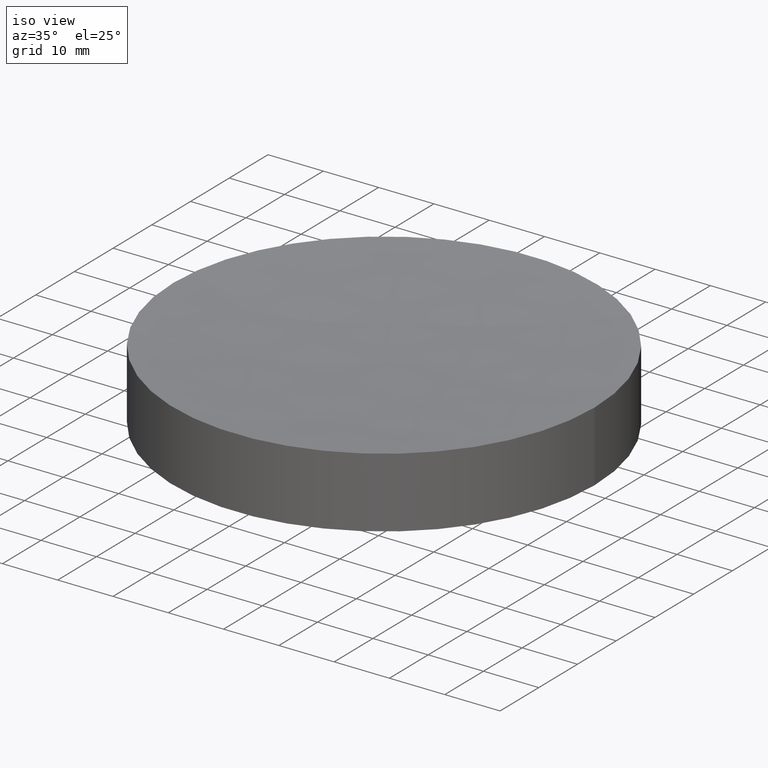
[diagram: clean part render]
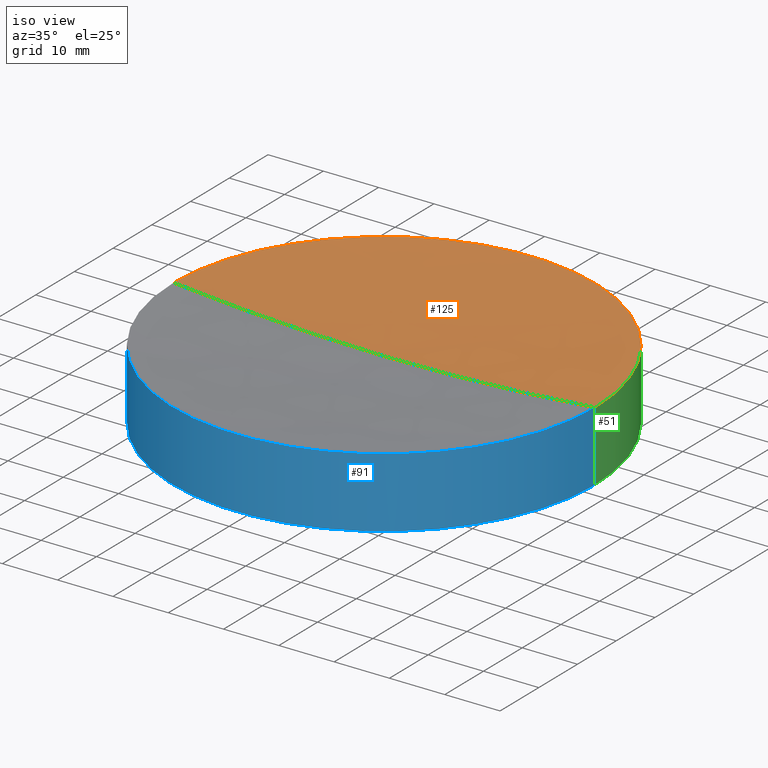
[diagram: same view with three faces highlighted in distinct colors, each labeled with its STEP entity id]
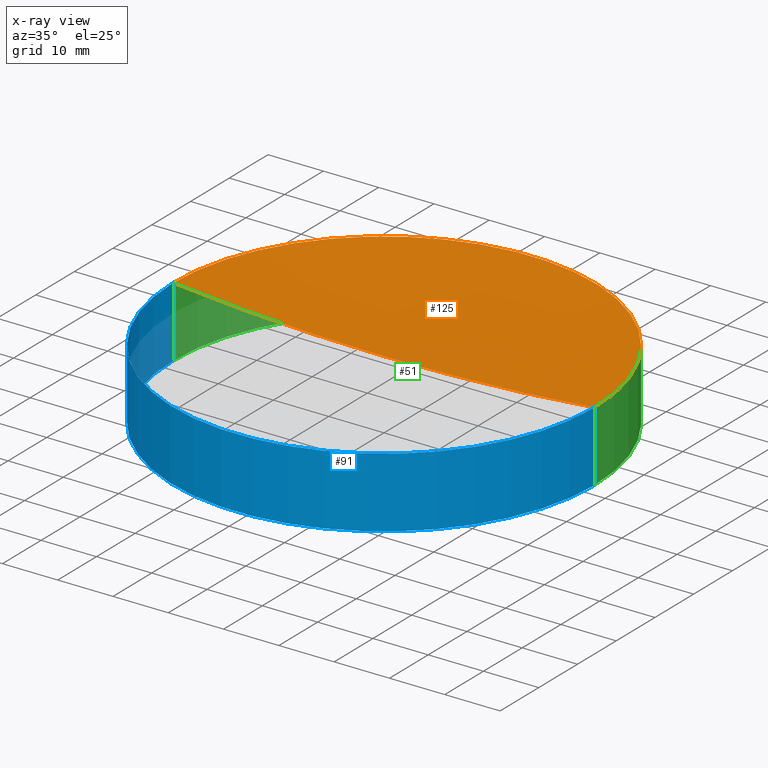
[diagram: x-ray of the same camera — body ghosted, the three highlighted faces saturated]
A machine part, iso view with three faces highlighted in distinct colors.
The next image is the same camera in x-ray (body ghosted, the three faces saturated) — at least one of them is partly hidden behind the body in this view.
Their STEP definitions:

[orange] entity #125 — the highlighted spherical surface has radius 400 mm.
#14 = EDGE_LOOP ( 'NONE', ( #173, #186, #81 ) ) ;
#15 = AXIS2_PLACEMENT_3D ( 'NONE', #170, #47, #188 ) ;
#17 = CIRCLE ( 'NONE', #112, 399.9999999999999432 ) ;
#23 = DIRECTION ( 'NONE',  ( -0.000000000000000000, -0.000000000000000000, -1.000000000000000000 ) ) ;
#25 = DIRECTION ( 'NONE',  ( 0.000000000000000000, -1.000000000000000000, -0.000000000000000000 ) ) ;
#40 = CARTESIAN_POINT ( 'NONE',  ( 7.306519331029765352E-14, 0.000000000000000000, 10.88135315456445440 ) ) ;
#41 = SPHERICAL_SURFACE ( 'NONE', #157, 400.0000000000000000 ) ;
#47 = DIRECTION ( 'NONE',  ( 1.224646799147353207E-16, -1.000000000000000000, 0.000000000000000000 ) ) ;
#54 = CARTESIAN_POINT ( 'NONE',  ( 4.857225732735059864E-14, 0.000000000000000000, 410.8813531545644651 ) ) ;
#65 = VERTEX_POINT ( 'NONE', #40 ) ;
#73 = CARTESIAN_POINT ( 'NONE',  ( 4.857225732735059864E-14, 0.000000000000000000, 410.8813531545644651 ) ) ;
#80 = VERTEX_POINT ( 'NONE', #196 ) ;
#81 = ORIENTED_EDGE ( 'NONE', *, *, #145, .F. ) ;
#85 = CIRCLE ( 'NONE', #97, 38.10000000000025722 ) ;
#87 = CARTESIAN_POINT ( 'NONE',  ( 38.10000000000030695, 4.665904304751453163E-15, 12.69999999999998863 ) ) ;
#94 = VERTEX_POINT ( 'NONE', #87 ) ;
#97 = AXIS2_PLACEMENT_3D ( 'NONE', #163, #23, #180 ) ;
#104 = DIRECTION ( 'NONE',  ( 0.000000000000000000, 1.000000000000000000, -0.000000000000000000 ) ) ;
#112 = AXIS2_PLACEMENT_3D ( 'NONE', #73, #104, #198 ) ;
#116 = FACE_OUTER_BOUND ( 'NONE', #14, .T. ) ;
#125 = ADVANCED_FACE ( 'NONE', ( #116 ), #41, .F. ) ;
#134 = CIRCLE ( 'NONE', #15, 400.0000000000000000 ) ;
#145 = EDGE_CURVE ( 'NONE', #94, #65, #17, .T. ) ;
#155 = EDGE_CURVE ( 'NONE', #80, #94, #85, .T. ) ;
#157 = AXIS2_PLACEMENT_3D ( 'NONE', #54, #25, #162 ) ;
#162 = DIRECTION ( 'NONE',  ( 1.000000000000000000, 0.000000000000000000, 0.000000000000000000 ) ) ;
#163 = CARTESIAN_POINT ( 'NONE',  ( 4.857225732735059864E-14, 0.000000000000000000, 12.69999999999998863 ) ) ;
#170 = CARTESIAN_POINT ( 'NONE',  ( 4.857225732735059864E-14, 0.000000000000000000, 410.8813531545644651 ) ) ;
#173 = ORIENTED_EDGE ( 'NONE', *, *, #155, .F. ) ;
#180 = DIRECTION ( 'NONE',  ( 1.000000000000000000, 0.000000000000000000, 0.000000000000000000 ) ) ;
#186 = ORIENTED_EDGE ( 'NONE', *, *, #199, .T. ) ;
#188 = DIRECTION ( 'NONE',  ( 1.000000000000000000, 1.224646799147353207E-16, 0.000000000000000000 ) ) ;
#196 = CARTESIAN_POINT ( 'NONE',  ( -38.10000000000020748, 0.000000000000000000, 12.69999999999998863 ) ) ;
#198 = DIRECTION ( 'NONE',  ( 0.000000000000000000, 0.000000000000000000, 1.000000000000000000 ) ) ;
#199 = EDGE_CURVE ( 'NONE', #80, #65, #134, .T. ) ;

[blue] entity #91 — the highlighted cylindrical surface (partial cylindrical patch) has radius 38.1 mm, axis along (-0, -0, -1).
#2 = ORIENTED_EDGE ( 'NONE', *, *, #26, .F. ) ;
#10 = DIRECTION ( 'NONE',  ( 0.000000000000000000, 0.000000000000000000, 1.000000000000000000 ) ) ;
#11 = DIRECTION ( 'NONE',  ( -0.000000000000000000, -0.000000000000000000, -1.000000000000000000 ) ) ;
#12 = EDGE_CURVE ( 'NONE', #94, #80, #49, .T. ) ;
#26 = EDGE_CURVE ( 'NONE', #94, #45, #118, .T. ) ;
#32 = ORIENTED_EDGE ( 'NONE', *, *, #46, .T. ) ;
#35 = VECTOR ( 'NONE', #164, 1000.000000000000000 ) ;
#42 = CARTESIAN_POINT ( 'NONE',  ( -38.10000000000000142, 0.000000000000000000, 12.69999999999999929 ) ) ;
#44 = CIRCLE ( 'NONE', #68, 38.10000000000000142 ) ;
#45 = VERTEX_POINT ( 'NONE', #90 ) ;
#46 = EDGE_CURVE ( 'NONE', #80, #175, #133, .T. ) ;
#49 = CIRCLE ( 'NONE', #193, 38.10000000000025722 ) ;
#50 = EDGE_LOOP ( 'NONE', ( #2, #138, #32, #169 ) ) ;
#56 = DIRECTION ( 'NONE',  ( -1.000000000000000000, 0.000000000000000000, 0.000000000000000000 ) ) ;
#64 = CARTESIAN_POINT ( 'NONE',  ( 4.857225732735059864E-14, 0.000000000000000000, 12.69999999999998863 ) ) ;
#68 = AXIS2_PLACEMENT_3D ( 'NONE', #132, #10, #130 ) ;
#72 = FACE_OUTER_BOUND ( 'NONE', #50, .T. ) ;
#80 = VERTEX_POINT ( 'NONE', #196 ) ;
#87 = CARTESIAN_POINT ( 'NONE',  ( 38.10000000000030695, 4.665904304751453163E-15, 12.69999999999998863 ) ) ;
#89 = CARTESIAN_POINT ( 'NONE',  ( 0.000000000000000000, 0.000000000000000000, 12.69999999999999929 ) ) ;
#90 = CARTESIAN_POINT ( 'NONE',  ( 38.10000000000000142, 4.665904304751416087E-15, 0.000000000000000000 ) ) ;
#91 = ADVANCED_FACE ( 'NONE', ( #72 ), #105, .T. ) ;
#94 = VERTEX_POINT ( 'NONE', #87 ) ;
#98 = DIRECTION ( 'NONE',  ( -0.000000000000000000, -0.000000000000000000, -1.000000000000000000 ) ) ;
#105 = CYLINDRICAL_SURFACE ( 'NONE', #109, 38.10000000000000142 ) ;
#109 = AXIS2_PLACEMENT_3D ( 'NONE', #89, #11, #56 ) ;
#113 = DIRECTION ( 'NONE',  ( 1.000000000000000000, 0.000000000000000000, 0.000000000000000000 ) ) ;
#118 = LINE ( 'NONE', #182, #35 ) ;
#130 = DIRECTION ( 'NONE',  ( 1.000000000000000000, 0.000000000000000000, 0.000000000000000000 ) ) ;
#132 = CARTESIAN_POINT ( 'NONE',  ( 0.000000000000000000, 0.000000000000000000, 0.000000000000000000 ) ) ;
#133 = LINE ( 'NONE', #42, #172 ) ;
#138 = ORIENTED_EDGE ( 'NONE', *, *, #12, .T. ) ;
#152 = CARTESIAN_POINT ( 'NONE',  ( -38.10000000000000142, 0.000000000000000000, 0.000000000000000000 ) ) ;
#154 = DIRECTION ( 'NONE',  ( -0.000000000000000000, -0.000000000000000000, -1.000000000000000000 ) ) ;
#164 = DIRECTION ( 'NONE',  ( -0.000000000000000000, -0.000000000000000000, -1.000000000000000000 ) ) ;
#169 = ORIENTED_EDGE ( 'NONE', *, *, #184, .T. ) ;
#172 = VECTOR ( 'NONE', #154, 1000.000000000000000 ) ;
#175 = VERTEX_POINT ( 'NONE', #152 ) ;
#182 = CARTESIAN_POINT ( 'NONE',  ( 38.10000000000000142, 4.665904304751416087E-15, 12.69999999999999929 ) ) ;
#184 = EDGE_CURVE ( 'NONE', #175, #45, #44, .T. ) ;
#193 = AXIS2_PLACEMENT_3D ( 'NONE', #64, #98, #113 ) ;
#196 = CARTESIAN_POINT ( 'NONE',  ( -38.10000000000020748, 0.000000000000000000, 12.69999999999998863 ) ) ;

[green] entity #51 — the highlighted cylindrical surface (partial cylindrical patch) has radius 38.1 mm, axis along (-0, -0, -1).
#13 = CARTESIAN_POINT ( 'NONE',  ( 0.000000000000000000, 0.000000000000000000, 0.000000000000000000 ) ) ;
#23 = DIRECTION ( 'NONE',  ( -0.000000000000000000, -0.000000000000000000, -1.000000000000000000 ) ) ;
#26 = EDGE_CURVE ( 'NONE', #94, #45, #118, .T. ) ;
#27 = DIRECTION ( 'NONE',  ( 1.000000000000000000, 0.000000000000000000, 0.000000000000000000 ) ) ;
#31 = ORIENTED_EDGE ( 'NONE', *, *, #26, .T. ) ;
#33 = EDGE_CURVE ( 'NONE', #45, #175, #59, .T. ) ;
#35 = VECTOR ( 'NONE', #164, 1000.000000000000000 ) ;
#42 = CARTESIAN_POINT ( 'NONE',  ( -38.10000000000000142, 0.000000000000000000, 12.69999999999999929 ) ) ;
#45 = VERTEX_POINT ( 'NONE', #90 ) ;
#46 = EDGE_CURVE ( 'NONE', #80, #175, #133, .T. ) ;
#51 = ADVANCED_FACE ( 'NONE', ( #57 ), #74, .T. ) ;
#57 = FACE_OUTER_BOUND ( 'NONE', #77, .T. ) ;
#59 = CIRCLE ( 'NONE', #149, 38.10000000000000142 ) ;
#74 = CYLINDRICAL_SURFACE ( 'NONE', #122, 38.10000000000000142 ) ;
#77 = EDGE_LOOP ( 'NONE', ( #123, #31, #110, #141 ) ) ;
#80 = VERTEX_POINT ( 'NONE', #196 ) ;
#85 = CIRCLE ( 'NONE', #97, 38.10000000000025722 ) ;
#87 = CARTESIAN_POINT ( 'NONE',  ( 38.10000000000030695, 4.665904304751453163E-15, 12.69999999999998863 ) ) ;
#90 = CARTESIAN_POINT ( 'NONE',  ( 38.10000000000000142, 4.665904304751416087E-15, 0.000000000000000000 ) ) ;
#94 = VERTEX_POINT ( 'NONE', #87 ) ;
#97 = AXIS2_PLACEMENT_3D ( 'NONE', #163, #23, #180 ) ;
#106 = DIRECTION ( 'NONE',  ( 0.000000000000000000, 0.000000000000000000, 1.000000000000000000 ) ) ;
#110 = ORIENTED_EDGE ( 'NONE', *, *, #33, .T. ) ;
#117 = CARTESIAN_POINT ( 'NONE',  ( 0.000000000000000000, 0.000000000000000000, 12.69999999999999929 ) ) ;
#118 = LINE ( 'NONE', #182, #35 ) ;
#122 = AXIS2_PLACEMENT_3D ( 'NONE', #117, #181, #153 ) ;
#123 = ORIENTED_EDGE ( 'NONE', *, *, #155, .T. ) ;
#133 = LINE ( 'NONE', #42, #172 ) ;
#141 = ORIENTED_EDGE ( 'NONE', *, *, #46, .F. ) ;
#149 = AXIS2_PLACEMENT_3D ( 'NONE', #13, #106, #27 ) ;
#152 = CARTESIAN_POINT ( 'NONE',  ( -38.10000000000000142, 0.000000000000000000, 0.000000000000000000 ) ) ;
#153 = DIRECTION ( 'NONE',  ( -1.000000000000000000, 0.000000000000000000, 0.000000000000000000 ) ) ;
#154 = DIRECTION ( 'NONE',  ( -0.000000000000000000, -0.000000000000000000, -1.000000000000000000 ) ) ;
#155 = EDGE_CURVE ( 'NONE', #80, #94, #85, .T. ) ;
#163 = CARTESIAN_POINT ( 'NONE',  ( 4.857225732735059864E-14, 0.000000000000000000, 12.69999999999998863 ) ) ;
#164 = DIRECTION ( 'NONE',  ( -0.000000000000000000, -0.000000000000000000, -1.000000000000000000 ) ) ;
#172 = VECTOR ( 'NONE', #154, 1000.000000000000000 ) ;
#175 = VERTEX_POINT ( 'NONE', #152 ) ;
#180 = DIRECTION ( 'NONE',  ( 1.000000000000000000, 0.000000000000000000, 0.000000000000000000 ) ) ;
#181 = DIRECTION ( 'NONE',  ( -0.000000000000000000, -0.000000000000000000, -1.000000000000000000 ) ) ;
#182 = CARTESIAN_POINT ( 'NONE',  ( 38.10000000000000142, 4.665904304751416087E-15, 12.69999999999999929 ) ) ;
#196 = CARTESIAN_POINT ( 'NONE',  ( -38.10000000000020748, 0.000000000000000000, 12.69999999999998863 ) ) ;